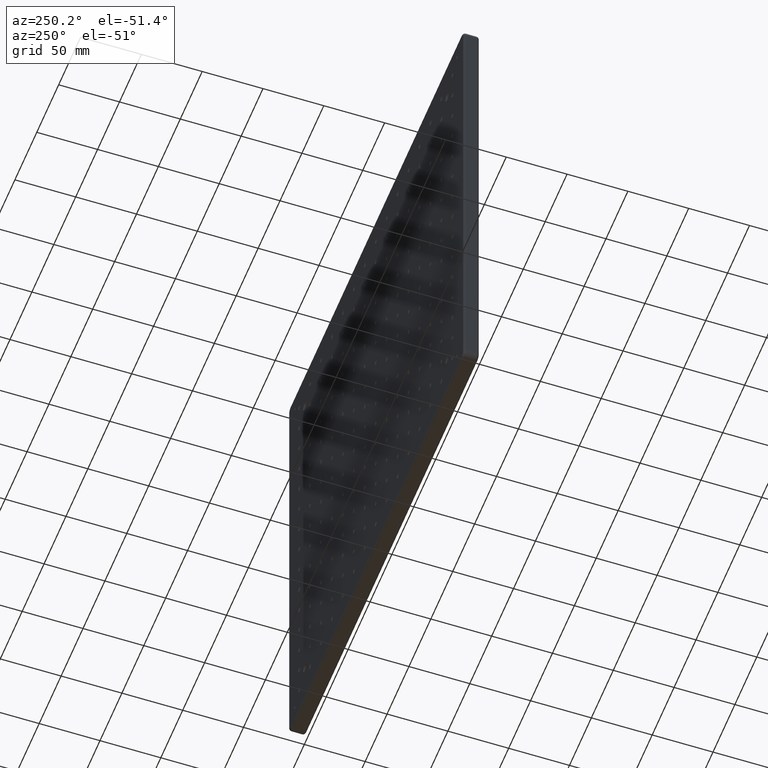
[diagram: clean part render]
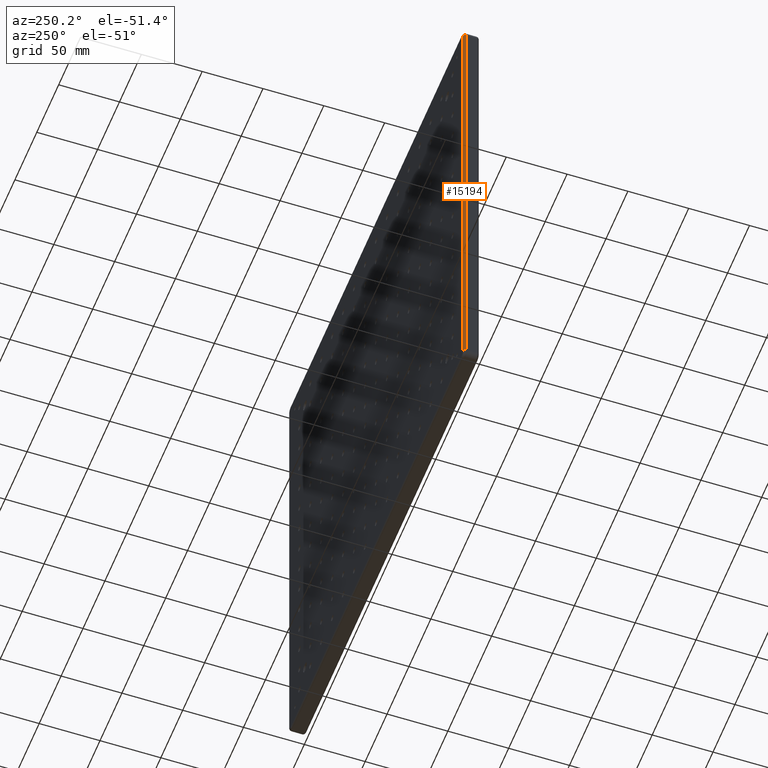
[diagram: same view with one face highlighted and labeled with its STEP entity id]
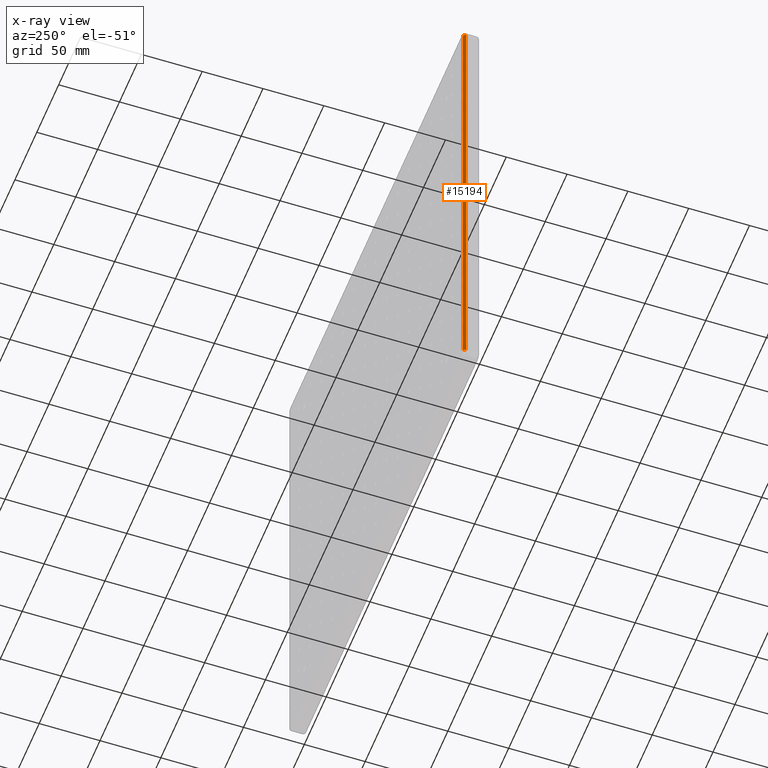
[diagram: x-ray of the same camera — body ghosted, the highlighted face saturated]
A machine part, auxiliary view. The second image highlights one B-rep face of the part: STEP entity #15194.
The next image is the same camera in x-ray: the body ghosted, the highlighted face saturated — about 0% of this face is hidden behind the body in this view.
In plain terms, the highlighted cylindrical surface (edge-blend (fillet) strip) has radius 2 mm, axis along (-0, 0, -1).
Its self-contained STEP definition (entity closure, byte-faithful):
#718 = EDGE_CURVE ( 'NONE', #5551, #4787, #15212, .T. ) ;
#745 = CARTESIAN_POINT ( 'NONE',  ( -200.0000000000000000, 11.00000000000000000, -194.9999999999999700 ) ) ;
#1772 = ORIENTED_EDGE ( 'NONE', *, *, #9827, .F. ) ;
#2658 = DIRECTION ( 'NONE',  ( -1.000000000000000000, 0.0000000000000000000, 0.0000000000000000000 ) ) ;
#3025 = CIRCLE ( 'NONE', #11948, 2.000000000000001800 ) ;
#3199 = DIRECTION ( 'NONE',  ( 0.0000000000000000000, -0.0000000000000000000, 1.000000000000000000 ) ) ;
#3693 = DIRECTION ( 'NONE',  ( -7.116814260417670700E-017, -0.0000000000000000000, -1.000000000000000000 ) ) ;
#4624 = CIRCLE ( 'NONE', #11778, 2.000000000000001800 ) ;
#4787 = VERTEX_POINT ( 'NONE', #745 ) ;
#5437 = DIRECTION ( 'NONE',  ( 7.116814260417670700E-017, -0.0000000000000000000, 1.000000000000000000 ) ) ;
#5506 = EDGE_LOOP ( 'NONE', ( #18117, #14800, #13446, #1772 ) ) ;
#5525 = VECTOR ( 'NONE', #5437, 1000.000000000000000 ) ;
#5551 = VERTEX_POINT ( 'NONE', #16163 ) ;
#6771 = DIRECTION ( 'NONE',  ( 1.000000000000000000, 0.0000000000000000000, 0.0000000000000000000 ) ) ;
#6990 = EDGE_CURVE ( 'NONE', #18141, #5551, #4624, .T. ) ;
#7522 = LINE ( 'NONE', #10937, #5525 ) ;
#9669 = FACE_OUTER_BOUND ( 'NONE', #5506, .T. ) ;
#9827 = EDGE_CURVE ( 'NONE', #12801, #18141, #7522, .T. ) ;
#10313 = VECTOR ( 'NONE', #3693, 1000.000000000000000 ) ;
#10937 = CARTESIAN_POINT ( 'NONE',  ( -197.9999999999999700, 13.00000000000000000, 195.0000000000000000 ) ) ;
#11263 = CARTESIAN_POINT ( 'NONE',  ( -198.0000000000000000, 11.00000000000000000, -195.0000000000000000 ) ) ;
#11338 = AXIS2_PLACEMENT_3D ( 'NONE', #11263, #16855, #2658 ) ;
#11778 = AXIS2_PLACEMENT_3D ( 'NONE', #17224, #3199, #13056 ) ;
#11847 = CARTESIAN_POINT ( 'NONE',  ( -197.9999999999999700, 13.00000000000000000, 194.9999999999999700 ) ) ;
#11948 = AXIS2_PLACEMENT_3D ( 'NONE', #13821, #18022, #6771 ) ;
#12023 = EDGE_CURVE ( 'NONE', #12801, #4787, #3025, .T. ) ;
#12801 = VERTEX_POINT ( 'NONE', #16389 ) ;
#13056 = DIRECTION ( 'NONE',  ( 1.000000000000000000, 0.0000000000000000000, 0.0000000000000000000 ) ) ;
#13446 = ORIENTED_EDGE ( 'NONE', *, *, #6990, .F. ) ;
#13821 = CARTESIAN_POINT ( 'NONE',  ( -198.0000000000000000, 11.00000000000000000, -194.9999999999999700 ) ) ;
#14800 = ORIENTED_EDGE ( 'NONE', *, *, #718, .F. ) ;
#15194 = ADVANCED_FACE ( 'NONE', ( #9669 ), #16308, .T. ) ;
#15212 = LINE ( 'NONE', #15937, #10313 ) ;
#15937 = CARTESIAN_POINT ( 'NONE',  ( -200.0000000000000000, 11.00000000000000000, -194.9999999999999700 ) ) ;
#16163 = CARTESIAN_POINT ( 'NONE',  ( -199.9999999999999700, 11.00000000000000000, 194.9999999999999700 ) ) ;
#16308 = CYLINDRICAL_SURFACE ( 'NONE', #11338, 2.000000000000001800 ) ;
#16389 = CARTESIAN_POINT ( 'NONE',  ( -198.0000000000000000, 13.00000000000000000, -194.9999999999999700 ) ) ;
#16855 = DIRECTION ( 'NONE',  ( -7.116814260417670700E-017, 0.0000000000000000000, -1.000000000000000000 ) ) ;
#17224 = CARTESIAN_POINT ( 'NONE',  ( -197.9999999999999700, 11.00000000000000000, 194.9999999999999700 ) ) ;
#18022 = DIRECTION ( 'NONE',  ( 0.0000000000000000000, -0.0000000000000000000, 1.000000000000000000 ) ) ;
#18117 = ORIENTED_EDGE ( 'NONE', *, *, #12023, .T. ) ;
#18141 = VERTEX_POINT ( 'NONE', #11847 ) ;